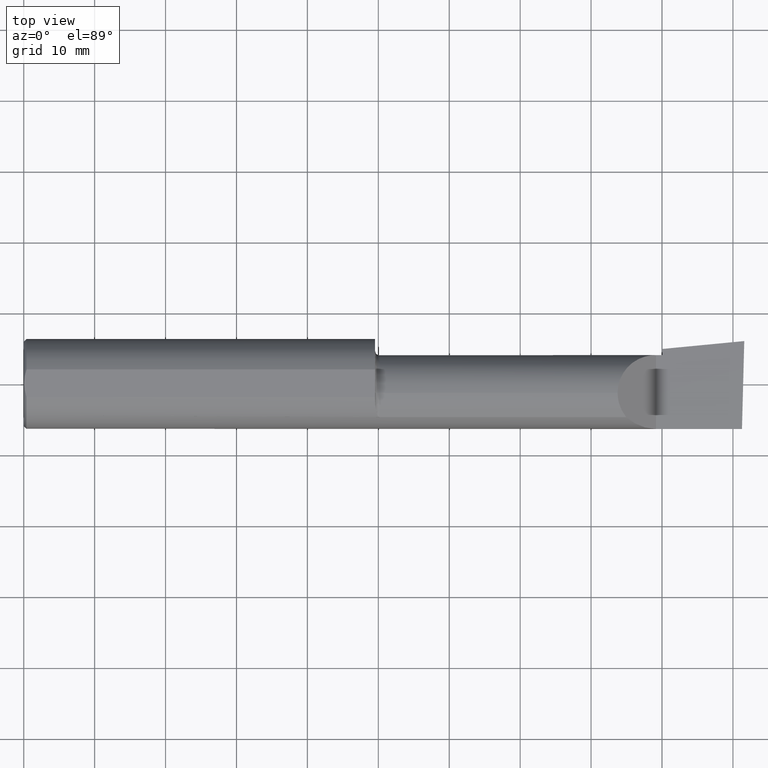
[diagram: clean part render]
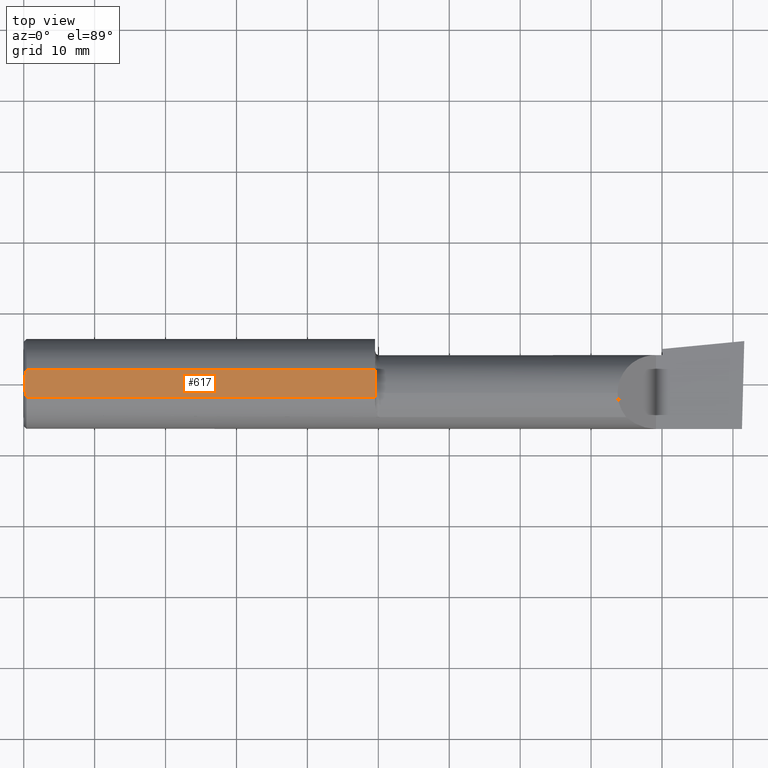
[diagram: same view with one face highlighted and labeled with its STEP entity id]
A machine part, top view. The second image highlights one B-rep face of the part: STEP entity #617.
In plain terms, the highlighted planar face has unit normal (0, -0, -1).
Its self-contained STEP definition (entity closure, byte-faithful):
#5 = EDGE_CURVE ( 'NONE', #315, #447, #389, .T. ) ;
#12 = CARTESIAN_POINT ( 'NONE',  ( 0.003000000000000061645, -0.01298133447204029636, 0.2378500000000000059 ) ) ;
#17 = CARTESIAN_POINT ( 'NONE',  ( 0.000000000000000000, -0.07650098038587477278, 0.2378500000000000059 ) ) ;
#26 = B_SPLINE_CURVE_WITH_KNOTS ( 'NONE', 3,
 ( #712, #770, #651, #524, #794, #178 ),
 .UNSPECIFIED., .F., .F.,
 ( 4, 2, 4 ),
 ( 0.004653101494310745746, 0.005634627094920350784, 0.006616152695529954955 ),
 .UNSPECIFIED. ) ;
#74 = ORIENTED_EDGE ( 'NONE', *, *, #682, .F. ) ;
#86 = DIRECTION ( 'NONE',  ( 0.000000000000000000, -1.000000000000000000, 1.138839417068643993E-16 ) ) ;
#96 = EDGE_CURVE ( 'NONE', #427, #595, #317, .T. ) ;
#97 = VERTEX_POINT ( 'NONE', #150 ) ;
#106 = EDGE_CURVE ( 'NONE', #281, #97, #563, .T. ) ;
#116 = DIRECTION ( 'NONE',  ( 0.000000000000000000, -1.000000000000000000, 1.138839417068643993E-16 ) ) ;
#125 = CARTESIAN_POINT ( 'NONE',  ( 1.950001800035618071, -0.04901601311796530136, 0.2378500024320483464 ) ) ;
#132 = ORIENTED_EDGE ( 'NONE', *, *, #437, .F. ) ;
#150 = CARTESIAN_POINT ( 'NONE',  ( 1.950000000000000178, -0.07650098038590487370, 0.2378500000000000059 ) ) ;
#170 = CARTESIAN_POINT ( 'NONE',  ( 0.003000000000000035624, 4.000210840755228160E-17, 0.2378500000000000059 ) ) ;
#178 = CARTESIAN_POINT ( 'NONE',  ( 0.01499999999999999771, 0.07650098038587481442, 0.2378500000000000059 ) ) ;
#179 = CARTESIAN_POINT ( 'NONE',  ( 1.950000000000000178, -0.06494989539702750170, 0.2378500000000000059 ) ) ;
#189 = CARTESIAN_POINT ( 'NONE',  ( 1.950000000000000178, -0.04503596074371395142, 0.2378500000000000059 ) ) ;
#194 = LINE ( 'NONE', #17, #319 ) ;
#195 = ORIENTED_EDGE ( 'NONE', *, *, #106, .F. ) ;
#198 = CARTESIAN_POINT ( 'NONE',  ( 0.008160184410935175658, -0.05138200716576606791, 0.2378500000000000336 ) ) ;
#201 = CARTESIAN_POINT ( 'NONE',  ( 0.004068542164723859197, -0.02585015905295368760, 0.2378499999999999226 ) ) ;
#223 = EDGE_LOOP ( 'NONE', ( #405, #744, #74, #630, #132, #195, #723, #431 ) ) ;
#230 = CARTESIAN_POINT ( 'NONE',  ( 1.950000000000000178, -0.06494989539702750170, 0.2378500000000000059 ) ) ;
#239 = LINE ( 'NONE', #603, #604 ) ;
#242 = EDGE_CURVE ( 'NONE', #447, #281, #495, .T. ) ;
#245 = CARTESIAN_POINT ( 'NONE',  ( 0.01499999999999999771, 0.07650098038587481442, 0.2378500000000000059 ) ) ;
#258 = CARTESIAN_POINT ( 'NONE',  ( 0.01499999999998191669, -0.07650098038590480432, 0.2378500000000000059 ) ) ;
#260 = AXIS2_PLACEMENT_3D ( 'NONE', #274, #354, #528 ) ;
#263 = DIRECTION ( 'NONE',  ( -1.000000000000000000, -0.000000000000000000, -0.000000000000000000 ) ) ;
#264 = CARTESIAN_POINT ( 'NONE',  ( 1.950000900032402340, -0.05299999999999998462, 0.2378500000000221548 ) ) ;
#274 = CARTESIAN_POINT ( 'NONE',  ( 4.000000000000000000, 0.2998500000000000609, 0.2378499999999999504 ) ) ;
#281 = VERTEX_POINT ( 'NONE', #179 ) ;
#292 = VERTEX_POINT ( 'NONE', #245 ) ;
#295 = CARTESIAN_POINT ( 'NONE',  ( 1.950001800093990711, -0.05698398688203908796, 0.2378499975680403167 ) ) ;
#313 = DIRECTION ( 'NONE',  ( 1.000000000000000000, 0.000000000000000000, 0.000000000000000000 ) ) ;
#315 = VERTEX_POINT ( 'NONE', #612 ) ;
#317 = B_SPLINE_CURVE_WITH_KNOTS ( 'NONE', 3,
 ( #449, #705, #198, #201, #12, #692 ),
 .UNSPECIFIED., .F., .F.,
 ( 4, 2, 4 ),
 ( 0.002692677063605041030, 0.003672889278957893171, 0.004653101494310745746 ),
 .UNSPECIFIED. ) ;
#319 = VECTOR ( 'NONE', #263, 39.37007874015748143 ) ;
#354 = DIRECTION ( 'NONE',  ( 0.000000000000000000, -1.138839417068643993E-16, -1.000000000000000000 ) ) ;
#372 = EDGE_CURVE ( 'NONE', #292, #480, #492, .T. ) ;
#389 = B_SPLINE_CURVE_WITH_KNOTS ( 'NONE', 3,
 ( #736, #189, #125, #264 ),
 .UNSPECIFIED., .F., .F.,
 ( 4, 4 ),
 ( 0.000000000000000000, 0.4999999999997231104 ),
 .UNSPECIFIED. ) ;
#390 = CARTESIAN_POINT ( 'NONE',  ( 1.950000000000000178, 0.2998500000000000609, 0.2378499999999999504 ) ) ;
#402 = PLANE ( 'NONE',  #260 ) ;
#405 = ORIENTED_EDGE ( 'NONE', *, *, #693, .F. ) ;
#427 = VERTEX_POINT ( 'NONE', #258 ) ;
#431 = ORIENTED_EDGE ( 'NONE', *, *, #5, .F. ) ;
#437 = EDGE_CURVE ( 'NONE', #97, #427, #194, .T. ) ;
#447 = VERTEX_POINT ( 'NONE', #510 ) ;
#449 = CARTESIAN_POINT ( 'NONE',  ( 0.01499999999998191669, -0.07650098038590480432, 0.2378500000000000059 ) ) ;
#467 = FACE_OUTER_BOUND ( 'NONE', #223, .T. ) ;
#480 = VERTEX_POINT ( 'NONE', #757 ) ;
#492 = LINE ( 'NONE', #742, #690 ) ;
#495 = B_SPLINE_CURVE_WITH_KNOTS ( 'NONE', 3,
 ( #778, #295, #718, #230 ),
 .UNSPECIFIED., .F., .F.,
 ( 4, 4 ),
 ( 0.4999999999997231104, 1.000000000000000000 ),
 .UNSPECIFIED. ) ;
#510 = CARTESIAN_POINT ( 'NONE',  ( 1.950000900032402340, -0.05299999999999998462, 0.2378500000000221548 ) ) ;
#514 = VECTOR ( 'NONE', #86, 39.37007874015748143 ) ;
#524 = CARTESIAN_POINT ( 'NONE',  ( 0.008199648822848978544, 0.05156445313451100965, 0.2378500000000000059 ) ) ;
#528 = DIRECTION ( 'NONE',  ( 0.000000000000000000, 1.000000000000000000, -1.138839417068643993E-16 ) ) ;
#563 = LINE ( 'NONE', #390, #514 ) ;
#595 = VERTEX_POINT ( 'NONE', #170 ) ;
#603 = CARTESIAN_POINT ( 'NONE',  ( 1.950000000000000178, 0.2998500000000000609, 0.2378499999999999504 ) ) ;
#604 = VECTOR ( 'NONE', #116, 39.37007874015748143 ) ;
#612 = CARTESIAN_POINT ( 'NONE',  ( 1.950000000000000178, -0.04105010460297241898, 0.2378500000000000059 ) ) ;
#617 = ADVANCED_FACE ( 'NONE', ( #467 ), #402, .F. ) ;
#630 = ORIENTED_EDGE ( 'NONE', *, *, #96, .F. ) ;
#651 = CARTESIAN_POINT ( 'NONE',  ( 0.004092330037930641193, 0.02606142970188499164, 0.2378500000000000059 ) ) ;
#682 = EDGE_CURVE ( 'NONE', #595, #292, #26, .T. ) ;
#690 = VECTOR ( 'NONE', #313, 39.37007874015748143 ) ;
#692 = CARTESIAN_POINT ( 'NONE',  ( 0.003000000000000035624, 4.000210840755228160E-17, 0.2378500000000000059 ) ) ;
#693 = EDGE_CURVE ( 'NONE', #480, #315, #239, .T. ) ;
#705 = CARTESIAN_POINT ( 'NONE',  ( 0.01120982745448978989, -0.06412238594540857484, 0.2378500000000000336 ) ) ;
#712 = CARTESIAN_POINT ( 'NONE',  ( 0.003000000000000035624, 4.000210840755228160E-17, 0.2378500000000000059 ) ) ;
#718 = CARTESIAN_POINT ( 'NONE',  ( 1.950000000000000178, -0.06096394231309124057, 0.2378500000000000059 ) ) ;
#723 = ORIENTED_EDGE ( 'NONE', *, *, #242, .F. ) ;
#736 = CARTESIAN_POINT ( 'NONE',  ( 1.950000000000000178, -0.04105010460297241898, 0.2378500000000000059 ) ) ;
#742 = CARTESIAN_POINT ( 'NONE',  ( 0.000000000000000000, 0.07650098038587481442, 0.2378500000000000059 ) ) ;
#744 = ORIENTED_EDGE ( 'NONE', *, *, #372, .F. ) ;
#757 = CARTESIAN_POINT ( 'NONE',  ( 1.950000000000000178, 0.07650098038587482829, 0.2378500000000000059 ) ) ;
#770 = CARTESIAN_POINT ( 'NONE',  ( 0.003000000000000063380, 0.01299872814765622858, 0.2378499999999999226 ) ) ;
#778 = CARTESIAN_POINT ( 'NONE',  ( 1.950000900032402340, -0.05299999999999998462, 0.2378500000000221548 ) ) ;
#794 = CARTESIAN_POINT ( 'NONE',  ( 0.01120763235350239959, 0.06411521680875344187, 0.2378500000000000336 ) ) ;